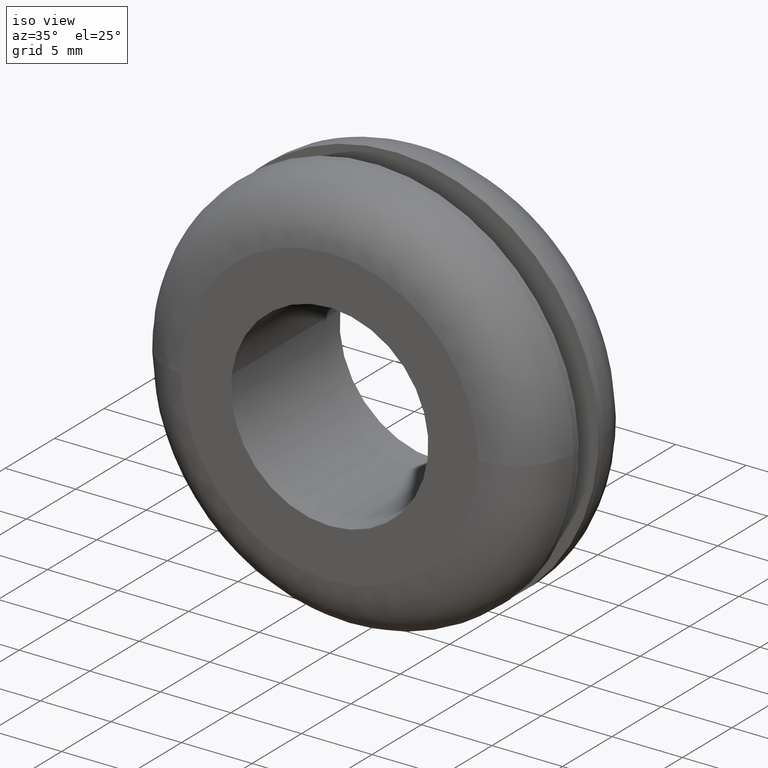
[diagram: clean part render]
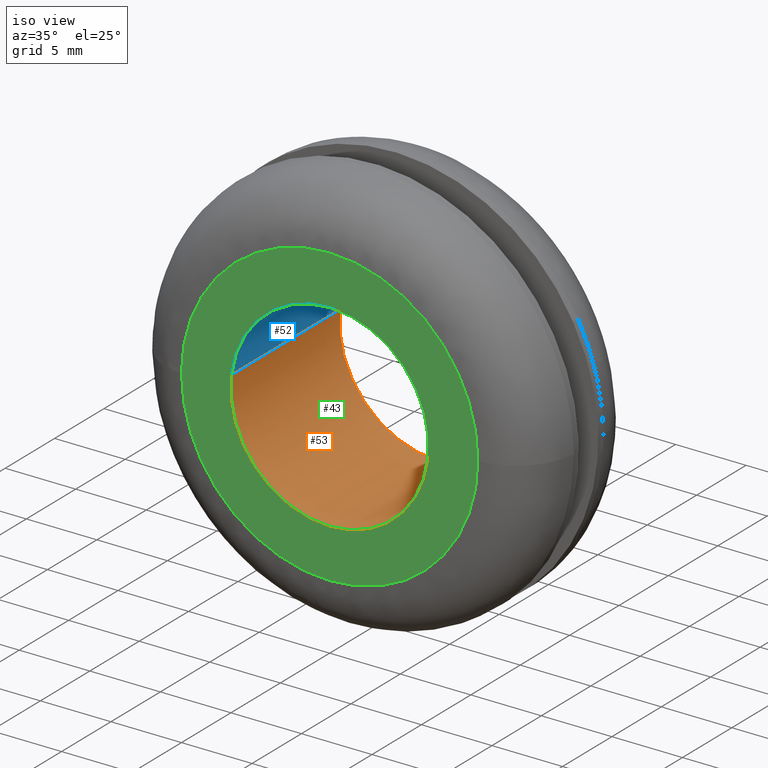
[diagram: same view with three faces highlighted in distinct colors, each labeled with its STEP entity id]
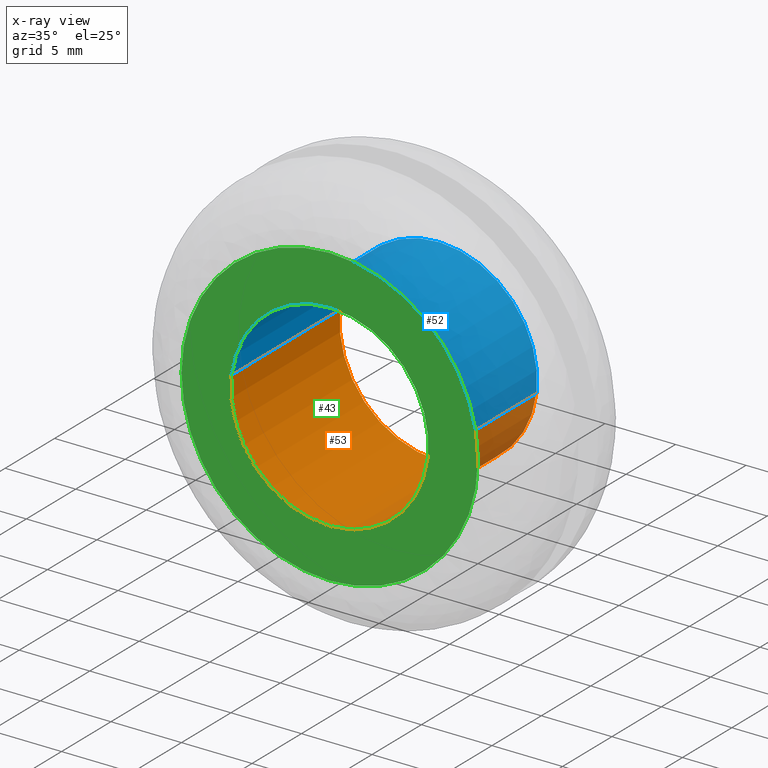
[diagram: x-ray of the same camera — body ghosted, the three highlighted faces saturated]
A machine part, iso view with three faces highlighted in distinct colors.
The next image is the same camera in x-ray (body ghosted, the three faces saturated) — at least one of them is partly hidden behind the body in this view.
Their STEP definitions:

[orange] entity #53 — the highlighted cylindrical surface (partial cylindrical patch) has radius 7 mm, axis along (0, 1, 0).
#53=ADVANCED_FACE('',(#191),#190,.F.);
#190=CYLINDRICAL_SURFACE('',#376,7.00000000000E+000);
#191=FACE_OUTER_BOUND('',#377,.T.);
#373=CARTESIAN_POINT('',(1.50384821000E-014,1.12750000000E+001,1.34124712907E-013));
#374=DIRECTION('',(2.52686505375E-015,1.00000000000E+000,2.34081776445E-014));
#375=DIRECTION('',(-9.93009526364E-001,-2.53765262772E-016,1.18034234657E-001));
#376=AXIS2_PLACEMENT_3D('',#373,#374,#375);
#377=EDGE_LOOP('',(#470,#471,#472,#473,#474,#475));
#470=ORIENTED_EDGE('',*,*,#505,.F.);
#471=ORIENTED_EDGE('',*,*,#507,.F.);
#472=ORIENTED_EDGE('',*,*,#537,.F.);
#473=ORIENTED_EDGE('',*,*,#511,.T.);
#474=ORIENTED_EDGE('',*,*,#513,.T.);
#475=ORIENTED_EDGE('',*,*,#538,.T.);
#505=EDGE_CURVE('',#646,#647,#648,.T.);
#507=EDGE_CURVE('',#654,#646,#661,.T.);
#511=EDGE_CURVE('',#688,#689,#690,.T.);
#513=EDGE_CURVE('',#689,#696,#703,.T.);
#537=EDGE_CURVE('',#688,#654,#862,.T.);
#538=EDGE_CURVE('',#696,#647,#868,.T.);
#646=VERTEX_POINT('',#961);
#647=VERTEX_POINT('',#962);
#648=CIRCLE('',#966,6.99999999999E+000);
#654=VERTEX_POINT('',#967);
#661=CIRCLE('',#975,6.99999999999E+000);
#688=VERTEX_POINT('',#991);
#689=VERTEX_POINT('',#992);
#690=CIRCLE('',#996,6.99999999999E+000);
#696=VERTEX_POINT('',#997);
#703=CIRCLE('',#1005,6.99999999999E+000);
#862=(BOUNDED_CURVE() B_SPLINE_CURVE(1,(#1107,#1108),.UNSPECIFIED.,.F.,.F.) B_SPLINE_CURVE_WITH_KNOTS((2,2),(8.33333343261E-002,9.16666667006E-001),.UNSPECIFIED.) CURVE() GEOMETRIC_REPRESENTATION_ITEM() RATIONAL_B_SPLINE_CURVE((1.00000000000E+000,1.00000000000E+000)) REPRESENTATION_ITEM('') );
#868=(BOUNDED_CURVE() B_SPLINE_CURVE(1,(#1109,#1110),.UNSPECIFIED.,.F.,.F.) B_SPLINE_CURVE_WITH_KNOTS((2,2),(8.33333333333E-002,9.16666666667E-001),.UNSPECIFIED.) CURVE() GEOMETRIC_REPRESENTATION_ITEM() RATIONAL_B_SPLINE_CURVE((7.50000000000E-001,7.50000000000E-001)) REPRESENTATION_ITEM('') );
#961=CARTESIAN_POINT('',(3.33066907388E-016,1.10000000000E+001,-6.99999999998E+000));
#962=CARTESIAN_POINT('',(6.95092377633E+000,1.10000000000E+001,-8.27441028414E-001));
#963=CARTESIAN_POINT('',(5.63415980537E-012,1.10000000000E+001,1.24025234527E-011));
#964=DIRECTION('',(-1.43020799963E-014,-1.00000000000E+000,-9.45239780479E-014));
#965=DIRECTION('',(-8.04453725856E-013,9.45239780479E-014,-1.00000000000E+000));
#966=AXIS2_PLACEMENT_3D('',#963,#964,#965);
#967=CARTESIAN_POINT('',(-6.95106698668E+000,1.10000000000E+001,8.26237100631E-001));
#972=CARTESIAN_POINT('',(5.63415980537E-012,1.10000000000E+001,1.24025234527E-011));
#973=DIRECTION('',(-1.43020799963E-014,-1.00000000000E+000,-9.45239780479E-014));
#974=DIRECTION('',(-8.04453725856E-013,9.45239780479E-014,-1.00000000000E+000));
#975=AXIS2_PLACEMENT_3D('',#972,#973,#974);
#991=CARTESIAN_POINT('',(-6.95106698668E+000,-1.36290802003E-015,8.26237100631E-001));
#992=CARTESIAN_POINT('',(-2.88657986403E-015,-1.98764595769E-015,-6.99999999998E+000));
#993=CARTESIAN_POINT('',(5.49826850715E-012,-1.34364488519E-015,1.21036514145E-011));
#994=DIRECTION('',(1.37068272936E-017,-1.00000000000E+000,9.20001532142E-017));
#995=DIRECTION('',(-7.85524423286E-013,-9.20001532142E-017,-1.00000000000E+000));
#996=AXIS2_PLACEMENT_3D('',#993,#994,#995);
#997=CARTESIAN_POINT('',(6.95092377633E+000,-1.32449447485E-015,-8.27441028414E-001));
#1002=CARTESIAN_POINT('',(5.49826850715E-012,-1.34364488519E-015,1.21036514145E-011));
#1003=DIRECTION('',(1.37068272936E-017,-1.00000000000E+000,9.20001532142E-017));
#1004=DIRECTION('',(-7.85524423286E-013,-9.20001532142E-017,-1.00000000000E+000));
#1005=AXIS2_PLACEMENT_3D('',#1002,#1003,#1004);
#1107=CARTESIAN_POINT('',(-6.95106668455E+000,1.31040238660E-008,8.26239642597E-001));
#1108=CARTESIAN_POINT('',(-6.95106668455E+000,1.10000000045E+001,8.26239642598E-001));
#1109=CARTESIAN_POINT('',(6.95106668455E+000,1.03620815632E-015,-8.26239642598E-001));
#1110=CARTESIAN_POINT('',(6.95106668455E+000,1.10000000000E+001,-8.26239642597E-001));

[blue] entity #52 — the highlighted cylindrical surface (partial cylindrical patch) has radius 7 mm, axis along (0, 1, 0).
#52=ADVANCED_FACE('',(#181),#180,.F.);
#180=CYLINDRICAL_SURFACE('',#371,7.00000000000E+000);
#181=FACE_OUTER_BOUND('',#372,.T.);
#368=CARTESIAN_POINT('',(1.50384821000E-014,1.12750000000E+001,1.34124712907E-013));
#369=DIRECTION('',(2.52686505375E-015,1.00000000000E+000,2.34081776445E-014));
#370=DIRECTION('',(-9.93009526364E-001,-2.53765262772E-016,1.18034234657E-001));
#371=AXIS2_PLACEMENT_3D('',#368,#369,#370);
#372=EDGE_LOOP('',(#466,#467,#468,#469));
#466=ORIENTED_EDGE('',*,*,#512,.T.);
#467=ORIENTED_EDGE('',*,*,#537,.T.);
#468=ORIENTED_EDGE('',*,*,#506,.F.);
#469=ORIENTED_EDGE('',*,*,#538,.F.);
#506=EDGE_CURVE('',#647,#654,#655,.T.);
#512=EDGE_CURVE('',#696,#688,#697,.T.);
#537=EDGE_CURVE('',#688,#654,#862,.T.);
#538=EDGE_CURVE('',#696,#647,#868,.T.);
#647=VERTEX_POINT('',#962);
#654=VERTEX_POINT('',#967);
#655=CIRCLE('',#971,6.99999999999E+000);
#688=VERTEX_POINT('',#991);
#696=VERTEX_POINT('',#997);
#697=CIRCLE('',#1001,6.99999999999E+000);
#862=(BOUNDED_CURVE() B_SPLINE_CURVE(1,(#1107,#1108),.UNSPECIFIED.,.F.,.F.) B_SPLINE_CURVE_WITH_KNOTS((2,2),(8.33333343261E-002,9.16666667006E-001),.UNSPECIFIED.) CURVE() GEOMETRIC_REPRESENTATION_ITEM() RATIONAL_B_SPLINE_CURVE((1.00000000000E+000,1.00000000000E+000)) REPRESENTATION_ITEM('') );
#868=(BOUNDED_CURVE() B_SPLINE_CURVE(1,(#1109,#1110),.UNSPECIFIED.,.F.,.F.) B_SPLINE_CURVE_WITH_KNOTS((2,2),(8.33333333333E-002,9.16666666667E-001),.UNSPECIFIED.) CURVE() GEOMETRIC_REPRESENTATION_ITEM() RATIONAL_B_SPLINE_CURVE((7.50000000000E-001,7.50000000000E-001)) REPRESENTATION_ITEM('') );
#962=CARTESIAN_POINT('',(6.95092377633E+000,1.10000000000E+001,-8.27441028414E-001));
#967=CARTESIAN_POINT('',(-6.95106698668E+000,1.10000000000E+001,8.26237100631E-001));
#968=CARTESIAN_POINT('',(5.63415980537E-012,1.10000000000E+001,1.24025234527E-011));
#969=DIRECTION('',(-1.43020799963E-014,-1.00000000000E+000,-9.45239780479E-014));
#970=DIRECTION('',(-8.04453725856E-013,9.45239780479E-014,-1.00000000000E+000));
#971=AXIS2_PLACEMENT_3D('',#968,#969,#970);
#991=CARTESIAN_POINT('',(-6.95106698668E+000,-1.36290802003E-015,8.26237100631E-001));
#997=CARTESIAN_POINT('',(6.95092377633E+000,-1.32449447485E-015,-8.27441028414E-001));
#998=CARTESIAN_POINT('',(5.49826850715E-012,-1.34364488519E-015,1.21036514145E-011));
#999=DIRECTION('',(1.37068272936E-017,-1.00000000000E+000,9.20001532142E-017));
#1000=DIRECTION('',(-7.85524423286E-013,-9.20001532142E-017,-1.00000000000E+000));
#1001=AXIS2_PLACEMENT_3D('',#998,#999,#1000);
#1107=CARTESIAN_POINT('',(-6.95106668455E+000,1.31040238660E-008,8.26239642597E-001));
#1108=CARTESIAN_POINT('',(-6.95106668455E+000,1.10000000045E+001,8.26239642598E-001));
#1109=CARTESIAN_POINT('',(6.95106668455E+000,1.03620815632E-015,-8.26239642598E-001));
#1110=CARTESIAN_POINT('',(6.95106668455E+000,1.10000000000E+001,-8.26239642597E-001));

[green] entity #43 — the highlighted planar face has unit normal (0, 1, 0).
#43=ADVANCED_FACE('',(#90,#91),#89,.F.);
#89=PLANE('',#241);
#90=FACE_OUTER_BOUND('',#242,.T.);
#91=FACE_BOUND('',#243,.T.);
#238=CARTESIAN_POINT('',(-2.18238401754E+001,-1.60729600000E-015,-2.41500000000E+001));
#239=DIRECTION('',(0.00000000000E+000,1.00000000000E+000,0.00000000000E+000));
#240=DIRECTION('',(0.00000000000E+000,0.00000000000E+000,1.00000000000E+000));
#241=AXIS2_PLACEMENT_3D('',#238,#239,#240);
#242=EDGE_LOOP('',(#406,#407,#408));
#243=EDGE_LOOP('',(#409,#410,#411));
#406=ORIENTED_EDGE('',*,*,#508,.T.);
#407=ORIENTED_EDGE('',*,*,#509,.T.);
#408=ORIENTED_EDGE('',*,*,#510,.T.);
#409=ORIENTED_EDGE('',*,*,#511,.F.);
#410=ORIENTED_EDGE('',*,*,#512,.F.);
#411=ORIENTED_EDGE('',*,*,#513,.F.);
#508=EDGE_CURVE('',#667,#668,#669,.T.);
#509=EDGE_CURVE('',#668,#675,#676,.T.);
#510=EDGE_CURVE('',#675,#667,#682,.T.);
#511=EDGE_CURVE('',#688,#689,#690,.T.);
#512=EDGE_CURVE('',#696,#688,#697,.T.);
#513=EDGE_CURVE('',#689,#696,#703,.T.);
#667=VERTEX_POINT('',#976);
#668=VERTEX_POINT('',#977);
#669=CIRCLE('',#981,1.05000000000E+001);
#675=VERTEX_POINT('',#982);
#676=CIRCLE('',#986,1.05000000000E+001);
#682=CIRCLE('',#990,1.05000000000E+001);
#688=VERTEX_POINT('',#991);
#689=VERTEX_POINT('',#992);
#690=CIRCLE('',#996,6.99999999999E+000);
#696=VERTEX_POINT('',#997);
#697=CIRCLE('',#1001,6.99999999999E+000);
#703=CIRCLE('',#1005,6.99999999999E+000);
#976=CARTESIAN_POINT('',(2.17401511726E-015,1.42466723759E-015,1.05000000000E+001));
#977=CARTESIAN_POINT('',(-1.05000000000E+001,-2.52043855790E-016,1.59170792982E-007));
#978=CARTESIAN_POINT('',(-5.49249534743E-012,-2.52043881204E-016,2.48876474984E-011));
#979=DIRECTION('',(-9.55135231928E-033,-1.00000000000E+000,1.59686773218E-016));
#980=DIRECTION('',(5.23179383415E-013,1.59686773218E-016,1.00000000000E+000));
#981=AXIS2_PLACEMENT_3D('',#978,#979,#980);
#982=CARTESIAN_POINT('',(1.05000000000E+001,-2.52043889676E-016,-5.30274066184E-008));
#983=CARTESIAN_POINT('',(-5.49249534743E-012,-2.52043881204E-016,2.48876474984E-011));
#984=DIRECTION('',(-9.55135231928E-033,-1.00000000000E+000,1.59686773218E-016));
#985=DIRECTION('',(5.23179383415E-013,1.59686773218E-016,1.00000000000E+000));
#986=AXIS2_PLACEMENT_3D('',#983,#984,#985);
#987=CARTESIAN_POINT('',(-5.49249534743E-012,-2.52043881204E-016,2.48876474984E-011));
#988=DIRECTION('',(-9.55135231928E-033,-1.00000000000E+000,1.59686773218E-016));
#989=DIRECTION('',(5.23179383415E-013,1.59686773218E-016,1.00000000000E+000));
#990=AXIS2_PLACEMENT_3D('',#987,#988,#989);
#991=CARTESIAN_POINT('',(-6.95106698668E+000,-1.36290802003E-015,8.26237100631E-001));
#992=CARTESIAN_POINT('',(-2.88657986403E-015,-1.98764595769E-015,-6.99999999998E+000));
#993=CARTESIAN_POINT('',(5.49826850715E-012,-1.34364488519E-015,1.21036514145E-011));
#994=DIRECTION('',(1.37068272936E-017,-1.00000000000E+000,9.20001532142E-017));
#995=DIRECTION('',(-7.85524423286E-013,-9.20001532142E-017,-1.00000000000E+000));
#996=AXIS2_PLACEMENT_3D('',#993,#994,#995);
#997=CARTESIAN_POINT('',(6.95092377633E+000,-1.32449447485E-015,-8.27441028414E-001));
#998=CARTESIAN_POINT('',(5.49826850715E-012,-1.34364488519E-015,1.21036514145E-011));
#999=DIRECTION('',(1.37068272936E-017,-1.00000000000E+000,9.20001532142E-017));
#1000=DIRECTION('',(-7.85524423286E-013,-9.20001532142E-017,-1.00000000000E+000));
#1001=AXIS2_PLACEMENT_3D('',#998,#999,#1000);
#1002=CARTESIAN_POINT('',(5.49826850715E-012,-1.34364488519E-015,1.21036514145E-011));
#1003=DIRECTION('',(1.37068272936E-017,-1.00000000000E+000,9.20001532142E-017));
#1004=DIRECTION('',(-7.85524423286E-013,-9.20001532142E-017,-1.00000000000E+000));
#1005=AXIS2_PLACEMENT_3D('',#1002,#1003,#1004);